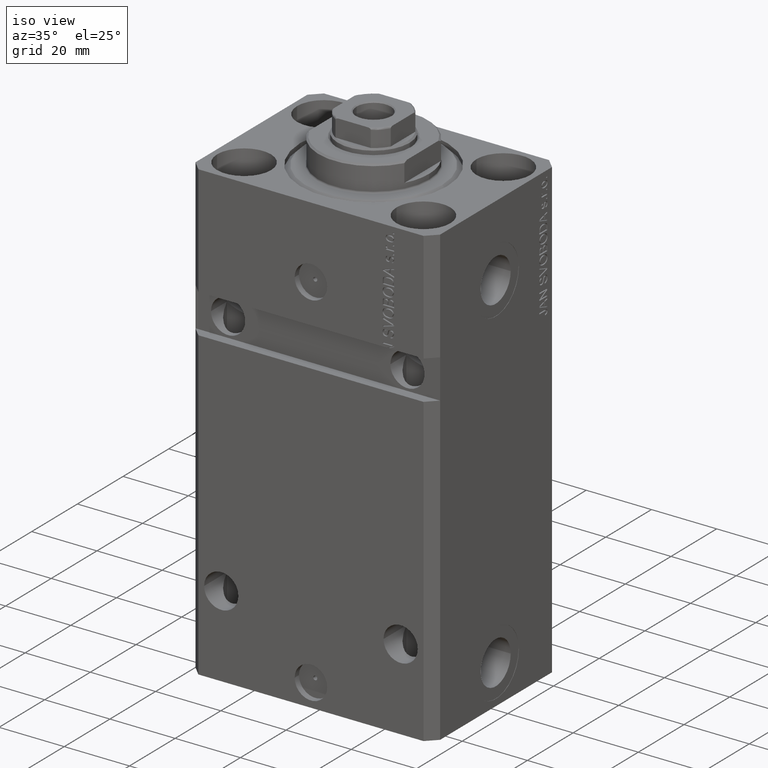
[diagram: clean part render]
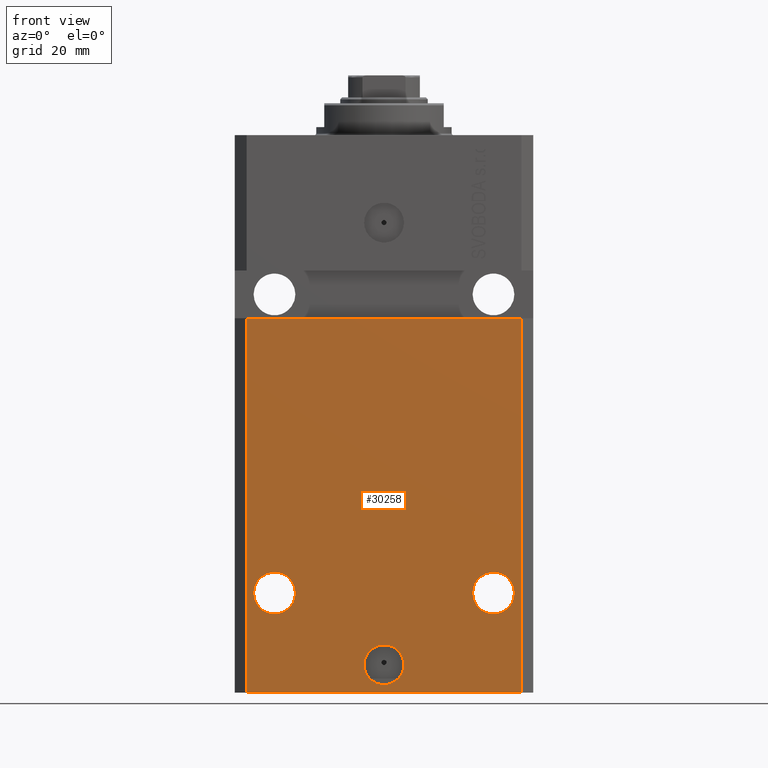
[diagram: tour spotlight — one face highlighted and labeled with its STEP entity id]
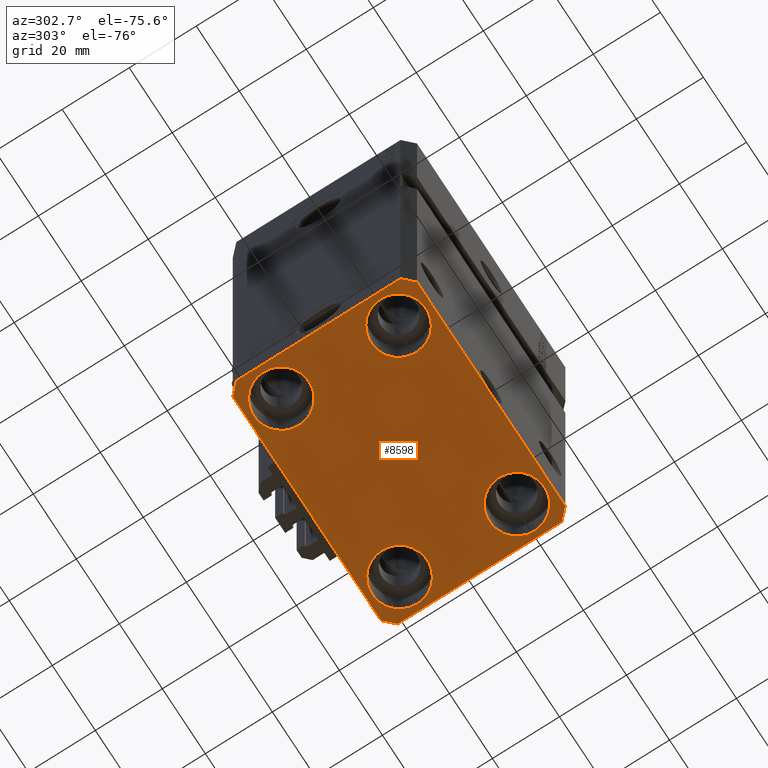
[diagram: tour spotlight — one face highlighted and labeled with its STEP entity id]
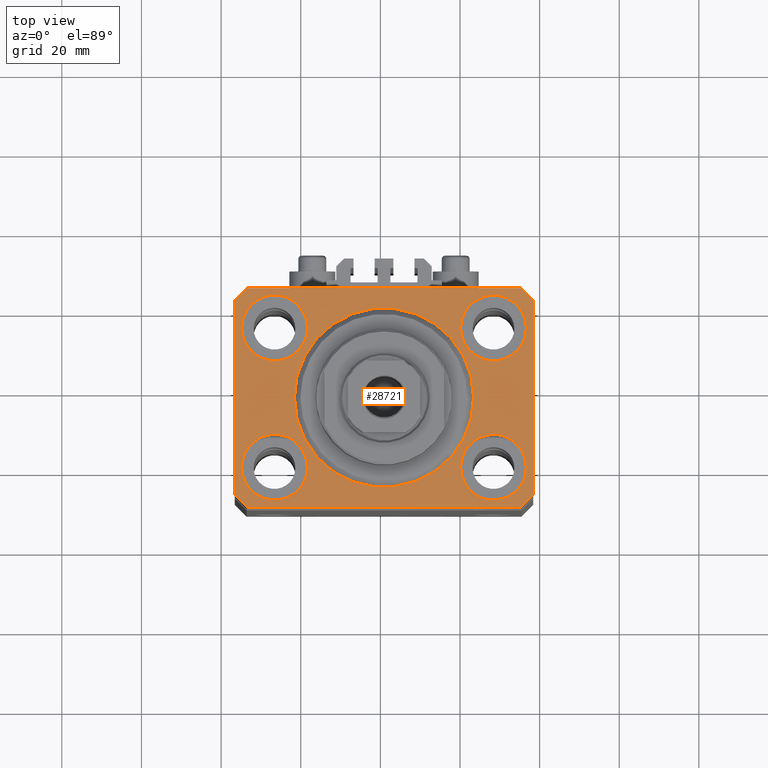
[diagram: tour spotlight — one face highlighted and labeled with its STEP entity id]
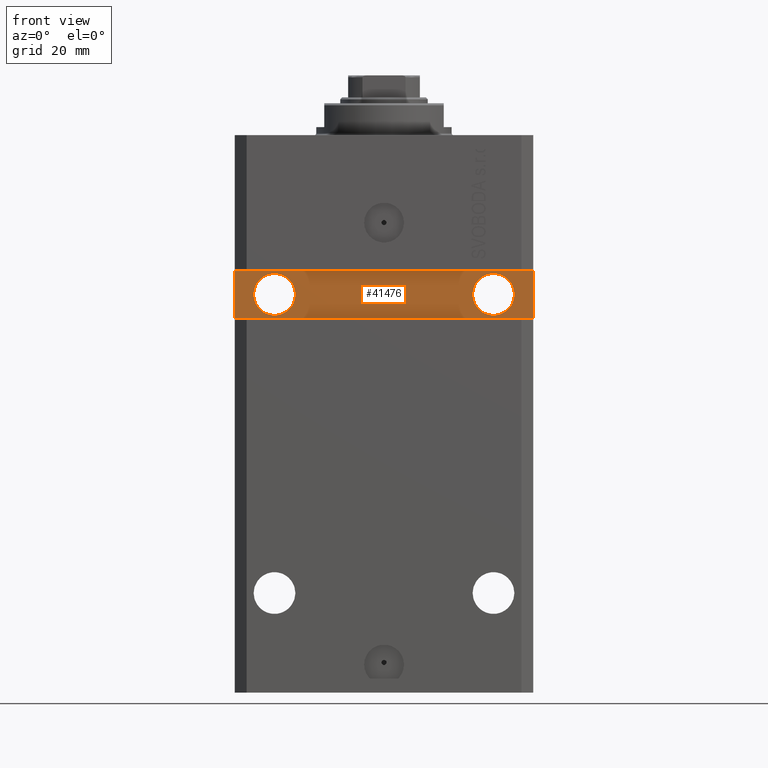
[diagram: tour spotlight — one face highlighted and labeled with its STEP entity id]
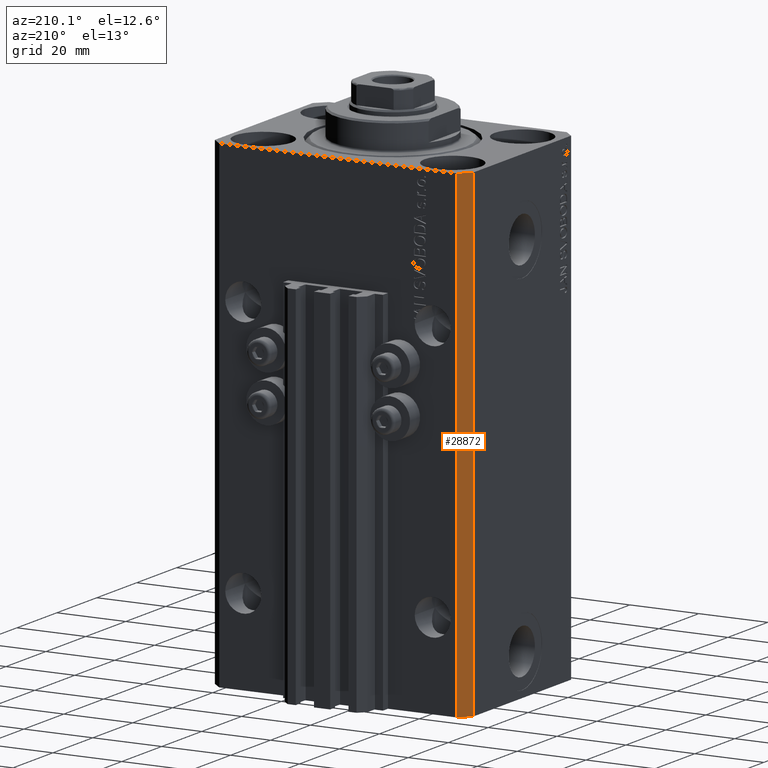
[diagram: tour spotlight — one face highlighted and labeled with its STEP entity id]
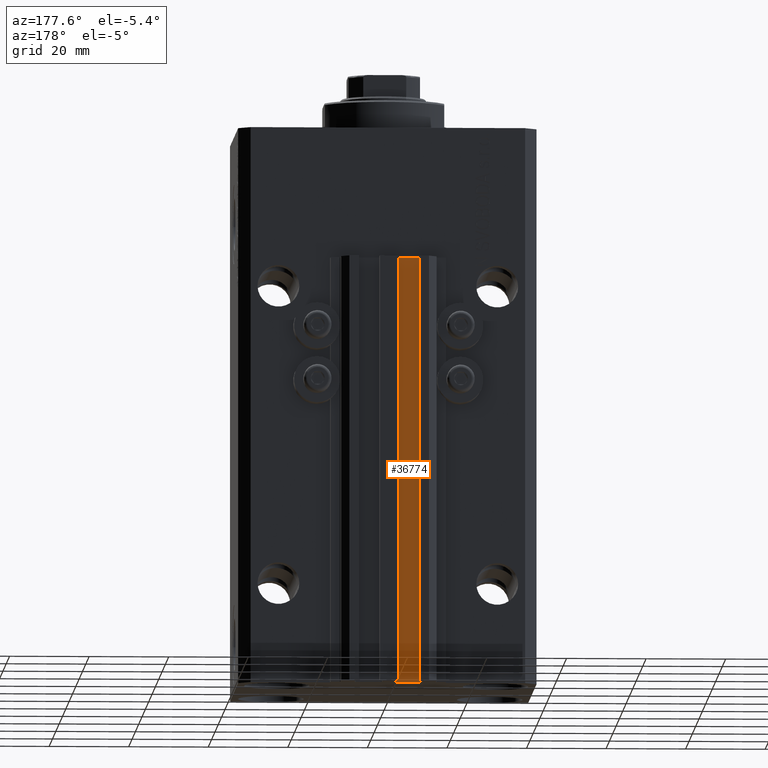
[diagram: tour spotlight — one face highlighted and labeled with its STEP entity id]
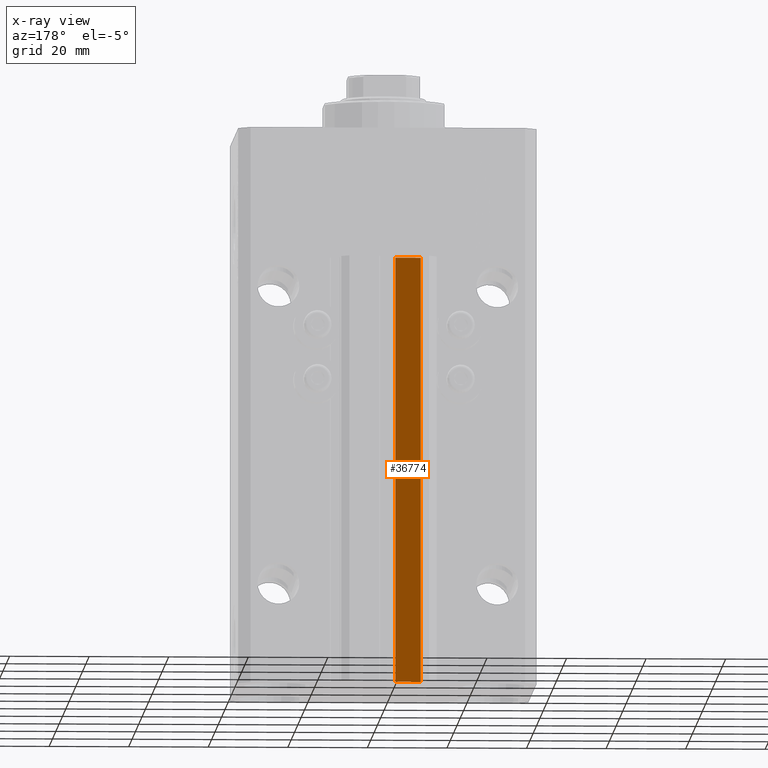
[diagram: x-ray of the same camera — body ghosted, this tour face saturated]
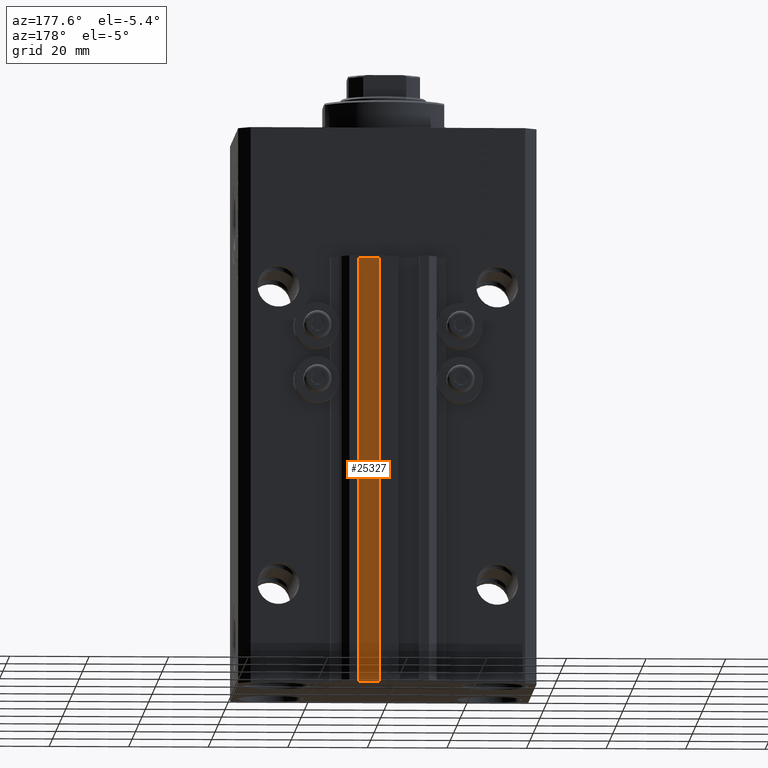
[diagram: tour spotlight — one face highlighted and labeled with its STEP entity id]
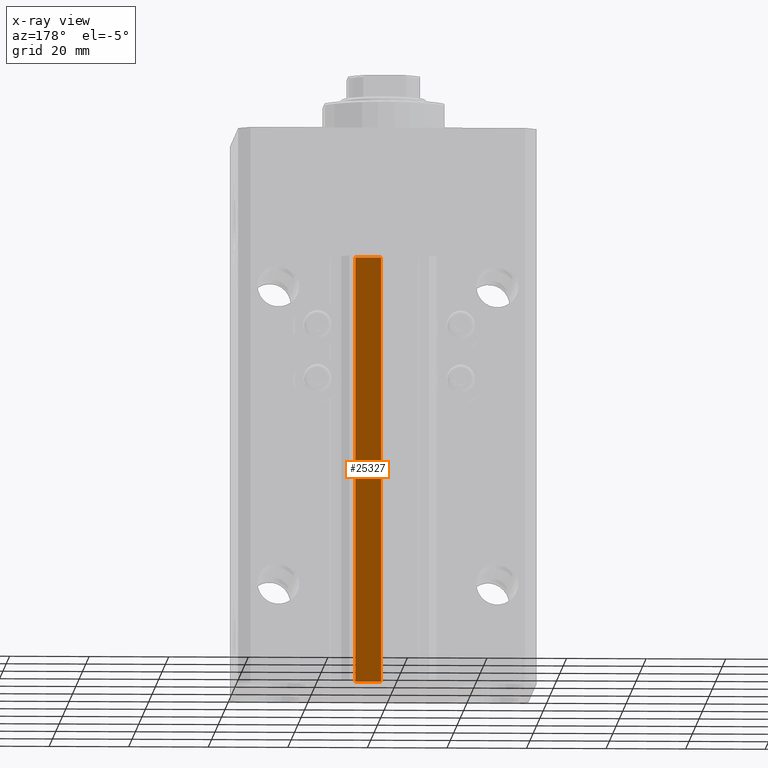
[diagram: x-ray of the same camera — body ghosted, this tour face saturated]
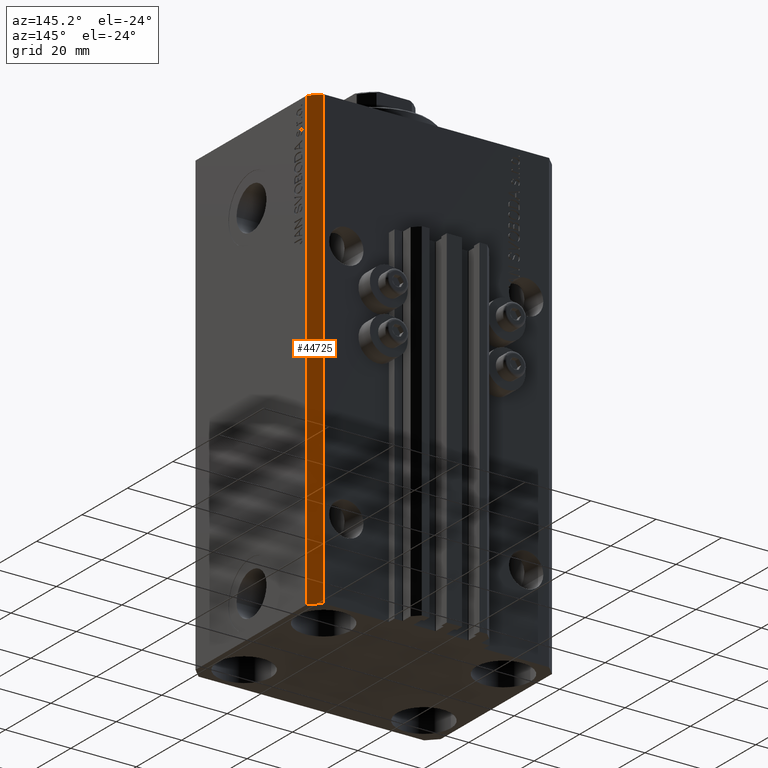
[diagram: tour spotlight — one face highlighted and labeled with its STEP entity id]
A machine part: a face-by-face anatomy tour. The part has 1100 B-rep faces; the first image is the clean iso view, then the 8 largest visible faces are spotlighted one at a time (largest first), each with its STEP entity span.

Face 1 — front view, entity #30258. In plain terms, the highlighted planar face has unit normal (0, -1, 0).
Definition (entity closure, byte-faithful):
#1977 = EDGE_LOOP ( 'NONE', ( #9939, #15415 ) ) ;
#2534 = CARTESIAN_POINT ( 'NONE',  ( -34.49999999999998579, -27.49999999999999645, -140.0000000000000000 ) ) ;
#2749 = VECTOR ( 'NONE', #28251, 1000.000000000000000 ) ;
#2879 = CARTESIAN_POINT ( 'NONE',  ( 22.25000000000002132, -27.49999999999999289, -114.9999999999999858 ) ) ;
#3288 = CARTESIAN_POINT ( 'NONE',  ( -27.50000000000001776, -27.50000000000000000, -114.9999999999999858 ) ) ;
#3728 = EDGE_CURVE ( 'NONE', #19976, #15999, #42656, .T. ) ;
#3859 = EDGE_LOOP ( 'NONE', ( #6249, #37751 ) ) ;
#4379 = VERTEX_POINT ( 'NONE', #32494 ) ;
#4487 = CIRCLE ( 'NONE', #24618, 5.249999999999997335 ) ;
#4536 = DIRECTION ( 'NONE',  ( 0.000000000000000000, -0.000000000000000000, -1.000000000000000000 ) ) ;
#4546 = AXIS2_PLACEMENT_3D ( 'NONE', #3288, #39633, #25575 ) ;
#5304 = CIRCLE ( 'NONE', #45526, 5.249999999999997335 ) ;
#5549 = EDGE_CURVE ( 'NONE', #36845, #9727, #39465, .T. ) ;
#6249 = ORIENTED_EDGE ( 'NONE', *, *, #26394, .F. ) ;
#6789 = CARTESIAN_POINT ( 'NONE',  ( -34.49999999999998579, -27.49999999999999645, -140.0000000000000000 ) ) ;
#7390 = EDGE_CURVE ( 'NONE', #15221, #27520, #18252, .T. ) ;
#7449 = FACE_BOUND ( 'NONE', #3859, .T. ) ;
#8467 = CARTESIAN_POINT ( 'NONE',  ( 0.000000000000000000, -27.49999999999999645, -133.0000000000000000 ) ) ;
#9727 = VERTEX_POINT ( 'NONE', #42075 ) ;
#9769 = EDGE_CURVE ( 'NONE', #15999, #9727, #43510, .T. ) ;
#9939 = ORIENTED_EDGE ( 'NONE', *, *, #19971, .F. ) ;
#10847 = AXIS2_PLACEMENT_3D ( 'NONE', #32717, #28840, #25200 ) ;
#12093 = DIRECTION ( 'NONE',  ( 1.000000000000000000, 0.000000000000000000, 0.000000000000000000 ) ) ;
#12491 = ORIENTED_EDGE ( 'NONE', *, *, #7390, .F. ) ;
#12802 = CARTESIAN_POINT ( 'NONE',  ( -5.000000000000006217, -27.49999999999999645, -133.0000000000000000 ) ) ;
#13310 = ORIENTED_EDGE ( 'NONE', *, *, #9769, .T. ) ;
#13447 = DIRECTION ( 'NONE',  ( 1.176083712526788232E-16, -1.000000000000000000, 0.000000000000000000 ) ) ;
#14148 = ORIENTED_EDGE ( 'NONE', *, *, #5549, .F. ) ;
#14586 = CARTESIAN_POINT ( 'NONE',  ( 5.000000000000006217, -27.49999999999999645, -133.0000000000000000 ) ) ;
#14722 = DIRECTION ( 'NONE',  ( 0.000000000000000000, -1.000000000000000000, 0.000000000000000000 ) ) ;
#14950 = PLANE ( 'NONE',  #39321 ) ;
#15081 = EDGE_CURVE ( 'NONE', #27520, #15221, #4487, .T. ) ;
#15221 = VERTEX_POINT ( 'NONE', #2879 ) ;
#15415 = ORIENTED_EDGE ( 'NONE', *, *, #25041, .F. ) ;
#15999 = VERTEX_POINT ( 'NONE', #32694 ) ;
#16609 = CARTESIAN_POINT ( 'NONE',  ( -27.50000000000001776, -27.50000000000000000, -114.9999999999999858 ) ) ;
#17030 = CIRCLE ( 'NONE', #10847, 5.000000000000006217 ) ;
#17299 = DIRECTION ( 'NONE',  ( 0.000000000000000000, 0.000000000000000000, 1.000000000000000000 ) ) ;
#17894 = DIRECTION ( 'NONE',  ( 1.000000000000000000, 9.251858538542972814E-17, 9.251858538542972814E-17 ) ) ;
#17920 = CARTESIAN_POINT ( 'NONE',  ( -34.49999999999998579, -27.50000000000000000, -46.00000000000000000 ) ) ;
#18252 = CIRCLE ( 'NONE', #45328, 5.249999999999997335 ) ;
#19321 = FACE_OUTER_BOUND ( 'NONE', #19670, .T. ) ;
#19560 = FACE_BOUND ( 'NONE', #1977, .T. ) ;
#19670 = EDGE_LOOP ( 'NONE', ( #14148, #24633, #29168, #13310 ) ) ;
#19910 = CARTESIAN_POINT ( 'NONE',  ( -34.49999999999998579, -27.49999999999999645, -140.0000000000000000 ) ) ;
#19971 = EDGE_CURVE ( 'NONE', #29254, #40070, #17030, .T. ) ;
#19976 = VERTEX_POINT ( 'NONE', #6789 ) ;
#20086 = CARTESIAN_POINT ( 'NONE',  ( 27.50000000000001776, -27.49999999999999289, -114.9999999999999858 ) ) ;
#23560 = VECTOR ( 'NONE', #28120, 1000.000000000000000 ) ;
#24519 = VERTEX_POINT ( 'NONE', #41107 ) ;
#24618 = AXIS2_PLACEMENT_3D ( 'NONE', #38279, #34896, #45292 ) ;
#24633 = ORIENTED_EDGE ( 'NONE', *, *, #46970, .F. ) ;
#25041 = EDGE_CURVE ( 'NONE', #40070, #29254, #36530, .T. ) ;
#25200 = DIRECTION ( 'NONE',  ( 1.000000000000000000, 0.000000000000000000, 0.000000000000000000 ) ) ;
#25480 = VECTOR ( 'NONE', #17299, 1000.000000000000000 ) ;
#25575 = DIRECTION ( 'NONE',  ( -1.000000000000000000, 0.000000000000000000, 0.000000000000000000 ) ) ;
#25697 = AXIS2_PLACEMENT_3D ( 'NONE', #8467, #45271, #12093 ) ;
#26060 = ORIENTED_EDGE ( 'NONE', *, *, #15081, .F. ) ;
#26394 = EDGE_CURVE ( 'NONE', #4379, #24519, #31627, .T. ) ;
#27520 = VERTEX_POINT ( 'NONE', #36791 ) ;
#27587 = DIRECTION ( 'NONE',  ( 1.176083712526788232E-16, -1.000000000000000000, 0.000000000000000000 ) ) ;
#28120 = DIRECTION ( 'NONE',  ( 1.000000000000000000, 0.000000000000000000, 0.000000000000000000 ) ) ;
#28251 = DIRECTION ( 'NONE',  ( 0.000000000000000000, 0.000000000000000000, 1.000000000000000000 ) ) ;
#28840 = DIRECTION ( 'NONE',  ( 1.176083712526788232E-16, -1.000000000000000000, 0.000000000000000000 ) ) ;
#29168 = ORIENTED_EDGE ( 'NONE', *, *, #3728, .T. ) ;
#29254 = VERTEX_POINT ( 'NONE', #14586 ) ;
#29818 = EDGE_CURVE ( 'NONE', #24519, #4379, #5304, .T. ) ;
#30227 = FACE_BOUND ( 'NONE', #37506, .T. ) ;
#30258 = ADVANCED_FACE ( 'NONE', ( #19560, #30227, #7449, #19321 ), #14950, .T. ) ;
#31152 = LINE ( 'NONE', #2534, #25480 ) ;
#31627 = CIRCLE ( 'NONE', #4546, 5.249999999999997335 ) ;
#32494 = CARTESIAN_POINT ( 'NONE',  ( -22.25000000000002132, -27.50000000000000000, -114.9999999999999858 ) ) ;
#32694 = CARTESIAN_POINT ( 'NONE',  ( 34.49999999999999289, -27.49999999999999645, -140.0000000000000000 ) ) ;
#32717 = CARTESIAN_POINT ( 'NONE',  ( 0.000000000000000000, -27.49999999999999645, -133.0000000000000000 ) ) ;
#33851 = CARTESIAN_POINT ( 'NONE',  ( -34.49999999999998579, -27.49999999999999645, -140.0000000000000000 ) ) ;
#34875 = DIRECTION ( 'NONE',  ( 1.000000000000000000, 0.000000000000000000, 0.000000000000000000 ) ) ;
#34896 = DIRECTION ( 'NONE',  ( 1.176083712526788232E-16, -1.000000000000000000, 0.000000000000000000 ) ) ;
#36530 = CIRCLE ( 'NONE', #25697, 5.000000000000006217 ) ;
#36791 = CARTESIAN_POINT ( 'NONE',  ( 32.75000000000001421, -27.49999999999999289, -114.9999999999999858 ) ) ;
#36845 = VERTEX_POINT ( 'NONE', #17920 ) ;
#37506 = EDGE_LOOP ( 'NONE', ( #26060, #12491 ) ) ;
#37751 = ORIENTED_EDGE ( 'NONE', *, *, #29818, .F. ) ;
#38279 = CARTESIAN_POINT ( 'NONE',  ( 27.50000000000001776, -27.49999999999999289, -114.9999999999999858 ) ) ;
#39321 = AXIS2_PLACEMENT_3D ( 'NONE', #33851, #14722, #4536 ) ;
#39465 = LINE ( 'NONE', #39699, #47589 ) ;
#39633 = DIRECTION ( 'NONE',  ( 1.176083712526788232E-16, -1.000000000000000000, 0.000000000000000000 ) ) ;
#39699 = CARTESIAN_POINT ( 'NONE',  ( -37.50000000000000000, -27.50000000000000000, -46.00000000000000000 ) ) ;
#40070 = VERTEX_POINT ( 'NONE', #12802 ) ;
#41107 = CARTESIAN_POINT ( 'NONE',  ( -32.75000000000001421, -27.50000000000000000, -114.9999999999999858 ) ) ;
#42075 = CARTESIAN_POINT ( 'NONE',  ( 34.49999999999999289, -27.49999999999999289, -45.99999999999999289 ) ) ;
#42656 = LINE ( 'NONE', #19910, #23560 ) ;
#42763 = DIRECTION ( 'NONE',  ( -1.000000000000000000, 0.000000000000000000, 0.000000000000000000 ) ) ;
#43510 = LINE ( 'NONE', #46646, #2749 ) ;
#45271 = DIRECTION ( 'NONE',  ( 1.176083712526788232E-16, -1.000000000000000000, 0.000000000000000000 ) ) ;
#45292 = DIRECTION ( 'NONE',  ( 1.000000000000000000, 0.000000000000000000, 0.000000000000000000 ) ) ;
#45328 = AXIS2_PLACEMENT_3D ( 'NONE', #20086, #27587, #34875 ) ;
#45526 = AXIS2_PLACEMENT_3D ( 'NONE', #16609, #13447, #42763 ) ;
#46646 = CARTESIAN_POINT ( 'NONE',  ( 34.49999999999999289, -27.49999999999999645, -140.0000000000000000 ) ) ;
#46970 = EDGE_CURVE ( 'NONE', #19976, #36845, #31152, .T. ) ;
#47589 = VECTOR ( 'NONE', #17894, 1000.000000000000000 ) ;

Face 2 — auxiliary view, entity #8598. In plain terms, the highlighted planar face has unit normal (0, 0, 1).
Definition (entity closure, byte-faithful):
#193 = DIRECTION ( 'NONE',  ( -0.000000000000000000, -0.000000000000000000, 1.000000000000000000 ) ) ;
#491 = VERTEX_POINT ( 'NONE', #29422 ) ;
#2094 = CARTESIAN_POINT ( 'NONE',  ( 37.50000000000051870, 24.49999999999995381, -140.0000000000000000 ) ) ;
#2254 = DIRECTION ( 'NONE',  ( -1.000000000000000000, 0.000000000000000000, 0.000000000000000000 ) ) ;
#2861 = FACE_BOUND ( 'NONE', #27019, .T. ) ;
#3277 = CARTESIAN_POINT ( 'NONE',  ( -37.49999999999999289, -24.50000000000000000, -140.0000000000000000 ) ) ;
#3506 = CARTESIAN_POINT ( 'NONE',  ( -19.25000000000000355, -17.50000000000000000, -140.0000000000000000 ) ) ;
#3728 = EDGE_CURVE ( 'NONE', #19976, #15999, #42656, .T. ) ;
#3948 = VECTOR ( 'NONE', #2254, 1000.000000000000000 ) ;
#4513 = AXIS2_PLACEMENT_3D ( 'NONE', #37018, #36777, #15681 ) ;
#5030 = CARTESIAN_POINT ( 'NONE',  ( -27.50000000000000355, 17.50000000000000000, -140.0000000000000000 ) ) ;
#5178 = LINE ( 'NONE', #9294, #18716 ) ;
#5251 = CIRCLE ( 'NONE', #16075, 8.250000000000000000 ) ;
#5517 = DIRECTION ( 'NONE',  ( 1.000000000000000000, 0.000000000000000000, 0.000000000000000000 ) ) ;
#5977 = EDGE_CURVE ( 'NONE', #20012, #14721, #14671, .T. ) ;
#6014 = DIRECTION ( 'NONE',  ( 1.000000000000000000, 0.000000000000000000, 0.000000000000000000 ) ) ;
#6020 = CARTESIAN_POINT ( 'NONE',  ( 0.000000000000000000, 0.000000000000000000, -140.0000000000000000 ) ) ;
#6789 = CARTESIAN_POINT ( 'NONE',  ( -34.49999999999998579, -27.49999999999999645, -140.0000000000000000 ) ) ;
#6947 = VERTEX_POINT ( 'NONE', #43668 ) ;
#6986 = FACE_BOUND ( 'NONE', #37729, .T. ) ;
#7134 = AXIS2_PLACEMENT_3D ( 'NONE', #11304, #30216, #26094 ) ;
#7490 = EDGE_CURVE ( 'NONE', #12868, #23882, #32201, .T. ) ;
#7586 = CIRCLE ( 'NONE', #4513, 8.249999999999992895 ) ;
#7837 = DIRECTION ( 'NONE',  ( 1.000000000000000000, 0.000000000000000000, 0.000000000000000000 ) ) ;
#7958 = CARTESIAN_POINT ( 'NONE',  ( 19.25000000000000000, 17.50000000000001066, -140.0000000000000000 ) ) ;
#8598 = ADVANCED_FACE ( 'NONE', ( #40172, #2861, #10137, #6986, #13518 ), #24925, .F. ) ;
#9205 = ORIENTED_EDGE ( 'NONE', *, *, #3728, .F. ) ;
#9294 = CARTESIAN_POINT ( 'NONE',  ( 34.49999999999999289, -27.49999999999999645, -140.0000000000000000 ) ) ;
#9802 = VECTOR ( 'NONE', #27361, 1000.000000000000000 ) ;
#9881 = CARTESIAN_POINT ( 'NONE',  ( -27.50000000000000355, -17.50000000000000000, -140.0000000000000000 ) ) ;
#10137 = FACE_BOUND ( 'NONE', #15084, .T. ) ;
#10239 = ORIENTED_EDGE ( 'NONE', *, *, #20742, .F. ) ;
#10298 = LINE ( 'NONE', #32828, #36534 ) ;
#11304 = CARTESIAN_POINT ( 'NONE',  ( -27.50000000000000355, 17.50000000000000000, -140.0000000000000000 ) ) ;
#11446 = DIRECTION ( 'NONE',  ( -0.000000000000000000, -0.000000000000000000, 1.000000000000000000 ) ) ;
#12585 = CARTESIAN_POINT ( 'NONE',  ( -34.49999999999999289, 27.50000000000000000, -140.0000000000000000 ) ) ;
#12868 = VERTEX_POINT ( 'NONE', #3506 ) ;
#13518 = FACE_OUTER_BOUND ( 'NONE', #32821, .T. ) ;
#13562 = EDGE_CURVE ( 'NONE', #31254, #19466, #45763, .T. ) ;
#13693 = DIRECTION ( 'NONE',  ( 0.000000000000000000, -1.000000000000000000, 0.000000000000000000 ) ) ;
#13778 = AXIS2_PLACEMENT_3D ( 'NONE', #25986, #11446, #18005 ) ;
#14555 = DIRECTION ( 'NONE',  ( -0.7071067811865356934, 0.7071067811865594521, 0.000000000000000000 ) ) ;
#14580 = DIRECTION ( 'NONE',  ( -0.000000000000000000, -0.000000000000000000, 1.000000000000000000 ) ) ;
#14614 = VECTOR ( 'NONE', #32835, 1000.000000000000000 ) ;
#14671 = LINE ( 'NONE', #23089, #42963 ) ;
#14721 = VERTEX_POINT ( 'NONE', #2094 ) ;
#14930 = CARTESIAN_POINT ( 'NONE',  ( -37.49999999999999289, 24.50000000000000000, -140.0000000000000000 ) ) ;
#15084 = EDGE_LOOP ( 'NONE', ( #23651, #34669 ) ) ;
#15681 = DIRECTION ( 'NONE',  ( 1.000000000000000000, 0.000000000000000000, 0.000000000000000000 ) ) ;
#15999 = VERTEX_POINT ( 'NONE', #32694 ) ;
#16075 = AXIS2_PLACEMENT_3D ( 'NONE', #47273, #14580, #35906 ) ;
#16909 = VERTEX_POINT ( 'NONE', #7958 ) ;
#17149 = DIRECTION ( 'NONE',  ( -0.000000000000000000, -0.000000000000000000, 1.000000000000000000 ) ) ;
#17639 = DIRECTION ( 'NONE',  ( 0.000000000000000000, 0.000000000000000000, 1.000000000000000000 ) ) ;
#18005 = DIRECTION ( 'NONE',  ( 1.000000000000000000, 0.000000000000000000, 0.000000000000000000 ) ) ;
#18407 = AXIS2_PLACEMENT_3D ( 'NONE', #24066, #42224, #38845 ) ;
#18716 = VECTOR ( 'NONE', #19966, 1000.000000000000114 ) ;
#18904 = ORIENTED_EDGE ( 'NONE', *, *, #34910, .F. ) ;
#19466 = VERTEX_POINT ( 'NONE', #14930 ) ;
#19910 = CARTESIAN_POINT ( 'NONE',  ( -34.49999999999998579, -27.49999999999999645, -140.0000000000000000 ) ) ;
#19966 = DIRECTION ( 'NONE',  ( 0.7071067811865474617, 0.7071067811865474617, 0.000000000000000000 ) ) ;
#19976 = VERTEX_POINT ( 'NONE', #6789 ) ;
#19999 = VERTEX_POINT ( 'NONE', #38017 ) ;
#20012 = VERTEX_POINT ( 'NONE', #22528 ) ;
#20603 = EDGE_CURVE ( 'NONE', #19466, #40261, #10298, .T. ) ;
#20742 = EDGE_CURVE ( 'NONE', #15999, #20012, #5178, .T. ) ;
#21176 = ORIENTED_EDGE ( 'NONE', *, *, #7490, .T. ) ;
#21408 = AXIS2_PLACEMENT_3D ( 'NONE', #5030, #193, #5517 ) ;
#21494 = CIRCLE ( 'NONE', #18407, 8.249999999999992895 ) ;
#21572 = EDGE_CURVE ( 'NONE', #35177, #491, #41194, .T. ) ;
#21668 = EDGE_CURVE ( 'NONE', #40144, #31254, #32051, .T. ) ;
#21704 = LINE ( 'NONE', #3277, #14614 ) ;
#22297 = CIRCLE ( 'NONE', #13778, 8.250000000000000000 ) ;
#22457 = EDGE_LOOP ( 'NONE', ( #27920, #21176 ) ) ;
#22528 = CARTESIAN_POINT ( 'NONE',  ( 37.49999999999999289, -24.50000000000000000, -140.0000000000000000 ) ) ;
#23089 = CARTESIAN_POINT ( 'NONE',  ( 37.49999999999999289, -24.50000000000000000, -140.0000000000000000 ) ) ;
#23560 = VECTOR ( 'NONE', #28120, 1000.000000000000000 ) ;
#23651 = ORIENTED_EDGE ( 'NONE', *, *, #33865, .T. ) ;
#23882 = VERTEX_POINT ( 'NONE', #25040 ) ;
#24066 = CARTESIAN_POINT ( 'NONE',  ( 27.49999999999999645, 17.50000000000001066, -140.0000000000000000 ) ) ;
#24561 = CIRCLE ( 'NONE', #26891, 8.250000000000000000 ) ;
#24564 = ORIENTED_EDGE ( 'NONE', *, *, #5977, .F. ) ;
#24925 = PLANE ( 'NONE',  #25172 ) ;
#25040 = CARTESIAN_POINT ( 'NONE',  ( -35.75000000000000711, -17.50000000000000000, -140.0000000000000000 ) ) ;
#25172 = AXIS2_PLACEMENT_3D ( 'NONE', #6020, #17639, #47180 ) ;
#25986 = CARTESIAN_POINT ( 'NONE',  ( 27.50000000000000355, -17.50000000000000000, -140.0000000000000000 ) ) ;
#26094 = DIRECTION ( 'NONE',  ( 1.000000000000000000, 0.000000000000000000, 0.000000000000000000 ) ) ;
#26726 = ORIENTED_EDGE ( 'NONE', *, *, #21572, .T. ) ;
#26891 = AXIS2_PLACEMENT_3D ( 'NONE', #37147, #41023, #7837 ) ;
#27019 = EDGE_LOOP ( 'NONE', ( #29188, #38207 ) ) ;
#27361 = DIRECTION ( 'NONE',  ( -0.7071067811865471286, -0.7071067811865479058, 0.000000000000000000 ) ) ;
#27920 = ORIENTED_EDGE ( 'NONE', *, *, #32616, .T. ) ;
#28120 = DIRECTION ( 'NONE',  ( 1.000000000000000000, 0.000000000000000000, 0.000000000000000000 ) ) ;
#29182 = EDGE_CURVE ( 'NONE', #19999, #16909, #21494, .T. ) ;
#29188 = ORIENTED_EDGE ( 'NONE', *, *, #33595, .T. ) ;
#29422 = CARTESIAN_POINT ( 'NONE',  ( -19.25000000000000355, 17.50000000000000000, -140.0000000000000000 ) ) ;
#30216 = DIRECTION ( 'NONE',  ( -0.000000000000000000, -0.000000000000000000, 1.000000000000000000 ) ) ;
#30467 = CARTESIAN_POINT ( 'NONE',  ( -34.49999999999999289, 27.50000000000000000, -140.0000000000000000 ) ) ;
#30787 = ORIENTED_EDGE ( 'NONE', *, *, #13562, .F. ) ;
#31254 = VERTEX_POINT ( 'NONE', #30467 ) ;
#31659 = VERTEX_POINT ( 'NONE', #40300 ) ;
#32051 = LINE ( 'NONE', #35685, #3948 ) ;
#32201 = CIRCLE ( 'NONE', #36859, 8.250000000000000000 ) ;
#32616 = EDGE_CURVE ( 'NONE', #23882, #12868, #24561, .T. ) ;
#32694 = CARTESIAN_POINT ( 'NONE',  ( 34.49999999999999289, -27.49999999999999645, -140.0000000000000000 ) ) ;
#32821 = EDGE_LOOP ( 'NONE', ( #45389, #18904, #24564, #10239, #9205, #47438, #35469, #30787 ) ) ;
#32828 = CARTESIAN_POINT ( 'NONE',  ( -37.49999999999999289, 24.50000000000000000, -140.0000000000000000 ) ) ;
#32835 = DIRECTION ( 'NONE',  ( 0.7071067811865483499, -0.7071067811865466846, 0.000000000000000000 ) ) ;
#33595 = EDGE_CURVE ( 'NONE', #31659, #6947, #22297, .T. ) ;
#33865 = EDGE_CURVE ( 'NONE', #16909, #19999, #7586, .T. ) ;
#34669 = ORIENTED_EDGE ( 'NONE', *, *, #29182, .T. ) ;
#34910 = EDGE_CURVE ( 'NONE', #14721, #40144, #36608, .T. ) ;
#35177 = VERTEX_POINT ( 'NONE', #39950 ) ;
#35469 = ORIENTED_EDGE ( 'NONE', *, *, #20603, .F. ) ;
#35685 = CARTESIAN_POINT ( 'NONE',  ( 34.50000000000056843, 27.50000000000000000, -140.0000000000000000 ) ) ;
#35906 = DIRECTION ( 'NONE',  ( 1.000000000000000000, 0.000000000000000000, 0.000000000000000000 ) ) ;
#36534 = VECTOR ( 'NONE', #13693, 1000.000000000000000 ) ;
#36608 = LINE ( 'NONE', #43631, #47620 ) ;
#36777 = DIRECTION ( 'NONE',  ( -0.000000000000000000, -0.000000000000000000, 1.000000000000000000 ) ) ;
#36859 = AXIS2_PLACEMENT_3D ( 'NONE', #9881, #17149, #6014 ) ;
#37018 = CARTESIAN_POINT ( 'NONE',  ( 27.49999999999999645, 17.50000000000001066, -140.0000000000000000 ) ) ;
#37147 = CARTESIAN_POINT ( 'NONE',  ( -27.50000000000000355, -17.50000000000000000, -140.0000000000000000 ) ) ;
#37729 = EDGE_LOOP ( 'NONE', ( #26726, #37825 ) ) ;
#37825 = ORIENTED_EDGE ( 'NONE', *, *, #37965, .T. ) ;
#37859 = DIRECTION ( 'NONE',  ( 1.076236605503979380E-14, 1.000000000000000000, 0.000000000000000000 ) ) ;
#37965 = EDGE_CURVE ( 'NONE', #491, #35177, #42281, .T. ) ;
#38017 = CARTESIAN_POINT ( 'NONE',  ( 35.74999999999999289, 17.50000000000001066, -140.0000000000000000 ) ) ;
#38207 = ORIENTED_EDGE ( 'NONE', *, *, #39717, .T. ) ;
#38845 = DIRECTION ( 'NONE',  ( 1.000000000000000000, 0.000000000000000000, 0.000000000000000000 ) ) ;
#39717 = EDGE_CURVE ( 'NONE', #6947, #31659, #5251, .T. ) ;
#39950 = CARTESIAN_POINT ( 'NONE',  ( -35.75000000000000711, 17.50000000000000000, -140.0000000000000000 ) ) ;
#40144 = VERTEX_POINT ( 'NONE', #43549 ) ;
#40172 = FACE_BOUND ( 'NONE', #22457, .T. ) ;
#40261 = VERTEX_POINT ( 'NONE', #43780 ) ;
#40300 = CARTESIAN_POINT ( 'NONE',  ( 19.25000000000000000, -17.50000000000000000, -140.0000000000000000 ) ) ;
#41023 = DIRECTION ( 'NONE',  ( -0.000000000000000000, -0.000000000000000000, 1.000000000000000000 ) ) ;
#41194 = CIRCLE ( 'NONE', #7134, 8.250000000000000000 ) ;
#42224 = DIRECTION ( 'NONE',  ( -0.000000000000000000, -0.000000000000000000, 1.000000000000000000 ) ) ;
#42281 = CIRCLE ( 'NONE', #21408, 8.250000000000000000 ) ;
#42656 = LINE ( 'NONE', #19910, #23560 ) ;
#42963 = VECTOR ( 'NONE', #37859, 1000.000000000000000 ) ;
#43549 = CARTESIAN_POINT ( 'NONE',  ( 34.50000000000056843, 27.50000000000000000, -140.0000000000000000 ) ) ;
#43631 = CARTESIAN_POINT ( 'NONE',  ( 37.50000000000051870, 24.49999999999995381, -140.0000000000000000 ) ) ;
#43668 = CARTESIAN_POINT ( 'NONE',  ( 35.75000000000000711, -17.50000000000000000, -140.0000000000000000 ) ) ;
#43780 = CARTESIAN_POINT ( 'NONE',  ( -37.49999999999999289, -24.50000000000000000, -140.0000000000000000 ) ) ;
#45389 = ORIENTED_EDGE ( 'NONE', *, *, #21668, .F. ) ;
#45763 = LINE ( 'NONE', #12585, #9802 ) ;
#45831 = EDGE_CURVE ( 'NONE', #40261, #19976, #21704, .T. ) ;
#47180 = DIRECTION ( 'NONE',  ( 1.000000000000000000, 0.000000000000000000, -0.000000000000000000 ) ) ;
#47273 = CARTESIAN_POINT ( 'NONE',  ( 27.50000000000000355, -17.50000000000000000, -140.0000000000000000 ) ) ;
#47438 = ORIENTED_EDGE ( 'NONE', *, *, #45831, .F. ) ;
#47620 = VECTOR ( 'NONE', #14555, 1000.000000000000114 ) ;

Face 3 — top view, entity #28721. In plain terms, the highlighted planar face has unit normal (0, 0, 1).
Definition (entity closure, byte-faithful):
#12 = EDGE_CURVE ( 'NONE', #36129, #34969, #45373, .T. ) ;
#96 = CARTESIAN_POINT ( 'NONE',  ( 27.49999999999999645, 17.50000000000001066, 0.000000000000000000 ) ) ;
#1022 = DIRECTION ( 'NONE',  ( 1.000000000000000000, 0.000000000000000000, 0.000000000000000000 ) ) ;
#1318 = AXIS2_PLACEMENT_3D ( 'NONE', #4903, #27199, #1022 ) ;
#1581 = CARTESIAN_POINT ( 'NONE',  ( -37.49999999999999289, -24.50000000000000000, 0.000000000000000000 ) ) ;
#2174 = ORIENTED_EDGE ( 'NONE', *, *, #12, .T. ) ;
#2181 = DIRECTION ( 'NONE',  ( 0.000000000000000000, 0.000000000000000000, 1.000000000000000000 ) ) ;
#2348 = LINE ( 'NONE', #21482, #21344 ) ;
#2507 = LINE ( 'NONE', #43199, #15217 ) ;
#2660 = DIRECTION ( 'NONE',  ( 1.000000000000000000, 0.000000000000000000, 0.000000000000000000 ) ) ;
#2707 = ORIENTED_EDGE ( 'NONE', *, *, #24299, .F. ) ;
#2830 = EDGE_CURVE ( 'NONE', #27763, #17466, #26630, .T. ) ;
#3069 = CIRCLE ( 'NONE', #36349, 8.249999999999992895 ) ;
#3091 = FACE_OUTER_BOUND ( 'NONE', #10395, .T. ) ;
#3241 = CARTESIAN_POINT ( 'NONE',  ( -19.25000000000000355, 17.50000000000000000, 0.000000000000000000 ) ) ;
#3796 = DIRECTION ( 'NONE',  ( 1.000000000000000000, 0.000000000000000000, -0.000000000000000000 ) ) ;
#3858 = DIRECTION ( 'NONE',  ( 1.000000000000000000, 0.000000000000000000, 0.000000000000000000 ) ) ;
#3927 = DIRECTION ( 'NONE',  ( 0.000000000000000000, 0.000000000000000000, 1.000000000000000000 ) ) ;
#4903 = CARTESIAN_POINT ( 'NONE',  ( 27.49999999999999645, 17.50000000000001066, 0.000000000000000000 ) ) ;
#5650 = CARTESIAN_POINT ( 'NONE',  ( 34.50000000000056843, 27.50000000000000000, 0.000000000000000000 ) ) ;
#5736 = DIRECTION ( 'NONE',  ( 1.076236605503979380E-14, 1.000000000000000000, 0.000000000000000000 ) ) ;
#5985 = DIRECTION ( 'NONE',  ( -0.7071067811865356934, 0.7071067811865594521, 0.000000000000000000 ) ) ;
#6291 = DIRECTION ( 'NONE',  ( 1.000000000000000000, 0.000000000000000000, 0.000000000000000000 ) ) ;
#6491 = CARTESIAN_POINT ( 'NONE',  ( 0.000000000000000000, 0.000000000000000000, 0.000000000000000000 ) ) ;
#6719 = FACE_BOUND ( 'NONE', #31172, .T. ) ;
#6787 = EDGE_CURVE ( 'NONE', #30478, #38410, #2348, .T. ) ;
#6943 = ORIENTED_EDGE ( 'NONE', *, *, #31830, .F. ) ;
#6965 = FACE_BOUND ( 'NONE', #11709, .T. ) ;
#7569 = AXIS2_PLACEMENT_3D ( 'NONE', #42847, #13071, #13532 ) ;
#8006 = CARTESIAN_POINT ( 'NONE',  ( -37.49999999999999289, 24.50000000000000000, 0.000000000000000000 ) ) ;
#8438 = EDGE_CURVE ( 'NONE', #34969, #16441, #8939, .T. ) ;
#8494 = DIRECTION ( 'NONE',  ( 1.000000000000000000, 0.000000000000000000, 0.000000000000000000 ) ) ;
#8939 = LINE ( 'NONE', #24199, #36065 ) ;
#9143 = AXIS2_PLACEMENT_3D ( 'NONE', #25608, #40386, #3796 ) ;
#9442 = DIRECTION ( 'NONE',  ( 0.000000000000000000, 0.000000000000000000, 1.000000000000000000 ) ) ;
#9498 = CARTESIAN_POINT ( 'NONE',  ( 19.25000000000000000, -17.50000000000000000, 0.000000000000000000 ) ) ;
#9799 = EDGE_CURVE ( 'NONE', #28959, #36129, #19723, .T. ) ;
#10370 = AXIS2_PLACEMENT_3D ( 'NONE', #14591, #3927, #41462 ) ;
#10395 = EDGE_LOOP ( 'NONE', ( #31504, #2174, #36437, #13403, #34900, #33570, #21811, #12850 ) ) ;
#11443 = DIRECTION ( 'NONE',  ( 1.000000000000000000, 0.000000000000000000, 0.000000000000000000 ) ) ;
#11709 = EDGE_LOOP ( 'NONE', ( #2707, #17477 ) ) ;
#11920 = EDGE_CURVE ( 'NONE', #17360, #16755, #35336, .T. ) ;
#12059 = AXIS2_PLACEMENT_3D ( 'NONE', #12119, #41675, #8494 ) ;
#12097 = DIRECTION ( 'NONE',  ( 0.000000000000000000, -1.000000000000000000, 0.000000000000000000 ) ) ;
#12119 = CARTESIAN_POINT ( 'NONE',  ( -27.50000000000000355, -17.50000000000000000, 0.000000000000000000 ) ) ;
#12850 = ORIENTED_EDGE ( 'NONE', *, *, #16245, .T. ) ;
#13071 = DIRECTION ( 'NONE',  ( 0.000000000000000000, 0.000000000000000000, 1.000000000000000000 ) ) ;
#13403 = ORIENTED_EDGE ( 'NONE', *, *, #25873, .T. ) ;
#13506 = DIRECTION ( 'NONE',  ( 0.000000000000000000, 0.000000000000000000, 1.000000000000000000 ) ) ;
#13532 = DIRECTION ( 'NONE',  ( 1.000000000000000000, 0.000000000000000000, 0.000000000000000000 ) ) ;
#13891 = DIRECTION ( 'NONE',  ( 0.7071067811865474617, 0.7071067811865474617, 0.000000000000000000 ) ) ;
#14065 = EDGE_CURVE ( 'NONE', #39845, #18568, #42951, .T. ) ;
#14591 = CARTESIAN_POINT ( 'NONE',  ( 0.000000000000000000, 0.000000000000000000, 0.000000000000000000 ) ) ;
#14686 = CARTESIAN_POINT ( 'NONE',  ( -22.50000000000000355, 2.755455298081545172E-15, 0.000000000000000000 ) ) ;
#15217 = VECTOR ( 'NONE', #13891, 1000.000000000000114 ) ;
#15257 = EDGE_CURVE ( 'NONE', #16755, #17360, #21517, .T. ) ;
#15818 = CARTESIAN_POINT ( 'NONE',  ( -34.49999999999999289, 27.50000000000000000, 0.000000000000000000 ) ) ;
#16050 = CARTESIAN_POINT ( 'NONE',  ( 35.74999999999999289, 17.50000000000001066, 0.000000000000000000 ) ) ;
#16245 = EDGE_CURVE ( 'NONE', #38410, #28959, #31435, .T. ) ;
#16441 = VERTEX_POINT ( 'NONE', #1581 ) ;
#16539 = CARTESIAN_POINT ( 'NONE',  ( -35.75000000000000711, 17.50000000000000000, 0.000000000000000000 ) ) ;
#16755 = VERTEX_POINT ( 'NONE', #9498 ) ;
#17360 = VERTEX_POINT ( 'NONE', #35494 ) ;
#17466 = VERTEX_POINT ( 'NONE', #43234 ) ;
#17477 = ORIENTED_EDGE ( 'NONE', *, *, #2830, .F. ) ;
#17516 = AXIS2_PLACEMENT_3D ( 'NONE', #24709, #9442, #6291 ) ;
#17616 = EDGE_CURVE ( 'NONE', #34542, #36493, #46343, .T. ) ;
#18148 = ORIENTED_EDGE ( 'NONE', *, *, #43384, .F. ) ;
#18568 = VERTEX_POINT ( 'NONE', #34971 ) ;
#18720 = CARTESIAN_POINT ( 'NONE',  ( -34.49999999999998579, -27.49999999999999645, 0.000000000000000000 ) ) ;
#18869 = CARTESIAN_POINT ( 'NONE',  ( -27.50000000000000355, -17.50000000000000000, 0.000000000000000000 ) ) ;
#19163 = EDGE_LOOP ( 'NONE', ( #41201, #27207 ) ) ;
#19297 = CIRCLE ( 'NONE', #35543, 8.250000000000000000 ) ;
#19723 = LINE ( 'NONE', #5650, #26762 ) ;
#20451 = EDGE_LOOP ( 'NONE', ( #21084, #36639 ) ) ;
#20667 = DIRECTION ( 'NONE',  ( 0.7071067811865483499, -0.7071067811865466846, 0.000000000000000000 ) ) ;
#20693 = VECTOR ( 'NONE', #11443, 1000.000000000000000 ) ;
#21084 = ORIENTED_EDGE ( 'NONE', *, *, #17616, .F. ) ;
#21344 = VECTOR ( 'NONE', #5736, 1000.000000000000000 ) ;
#21482 = CARTESIAN_POINT ( 'NONE',  ( 37.49999999999999289, -24.50000000000000000, 0.000000000000000000 ) ) ;
#21504 = FACE_BOUND ( 'NONE', #19163, .T. ) ;
#21517 = CIRCLE ( 'NONE', #7569, 8.250000000000000000 ) ;
#21568 = VERTEX_POINT ( 'NONE', #44739 ) ;
#21811 = ORIENTED_EDGE ( 'NONE', *, *, #6787, .T. ) ;
#21848 = VERTEX_POINT ( 'NONE', #43903 ) ;
#22223 = CIRCLE ( 'NONE', #1318, 8.249999999999992895 ) ;
#22281 = DIRECTION ( 'NONE',  ( 0.000000000000000000, 0.000000000000000000, 1.000000000000000000 ) ) ;
#22307 = VECTOR ( 'NONE', #5985, 1000.000000000000114 ) ;
#23110 = DIRECTION ( 'NONE',  ( -0.7071067811865471286, -0.7071067811865479058, 0.000000000000000000 ) ) ;
#23185 = AXIS2_PLACEMENT_3D ( 'NONE', #42693, #31100, #24291 ) ;
#23186 = CIRCLE ( 'NONE', #30925, 8.250000000000000000 ) ;
#24199 = CARTESIAN_POINT ( 'NONE',  ( -37.49999999999999289, 24.50000000000000000, 0.000000000000000000 ) ) ;
#24291 = DIRECTION ( 'NONE',  ( 1.000000000000000000, 0.000000000000000000, 0.000000000000000000 ) ) ;
#24299 = EDGE_CURVE ( 'NONE', #17466, #27763, #25670, .T. ) ;
#24320 = ORIENTED_EDGE ( 'NONE', *, *, #47831, .F. ) ;
#24545 = CARTESIAN_POINT ( 'NONE',  ( -37.49999999999999289, -24.50000000000000000, 0.000000000000000000 ) ) ;
#24709 = CARTESIAN_POINT ( 'NONE',  ( 27.50000000000000355, -17.50000000000000000, 0.000000000000000000 ) ) ;
#24801 = LINE ( 'NONE', #24545, #41227 ) ;
#25073 = DIRECTION ( 'NONE',  ( 1.000000000000000000, 0.000000000000000000, 0.000000000000000000 ) ) ;
#25557 = DIRECTION ( 'NONE',  ( 0.000000000000000000, 0.000000000000000000, 1.000000000000000000 ) ) ;
#25608 = CARTESIAN_POINT ( 'NONE',  ( 0.000000000000000000, 0.000000000000000000, 0.000000000000000000 ) ) ;
#25670 = CIRCLE ( 'NONE', #31856, 22.50000000000000355 ) ;
#25873 = EDGE_CURVE ( 'NONE', #16441, #39845, #24801, .T. ) ;
#26630 = CIRCLE ( 'NONE', #10370, 22.50000000000000355 ) ;
#26762 = VECTOR ( 'NONE', #45636, 1000.000000000000000 ) ;
#27199 = DIRECTION ( 'NONE',  ( 0.000000000000000000, 0.000000000000000000, 1.000000000000000000 ) ) ;
#27207 = ORIENTED_EDGE ( 'NONE', *, *, #15257, .F. ) ;
#27224 = CARTESIAN_POINT ( 'NONE',  ( -27.50000000000000355, 17.50000000000000000, 0.000000000000000000 ) ) ;
#27670 = VERTEX_POINT ( 'NONE', #43042 ) ;
#27763 = VERTEX_POINT ( 'NONE', #14686 ) ;
#27848 = EDGE_LOOP ( 'NONE', ( #38847, #18148 ) ) ;
#28721 = ADVANCED_FACE ( 'NONE', ( #36738, #21504, #6719, #36280, #6965, #3091 ), #47392, .T. ) ;
#28930 = CARTESIAN_POINT ( 'NONE',  ( 37.50000000000051870, 24.49999999999995381, 0.000000000000000000 ) ) ;
#28959 = VERTEX_POINT ( 'NONE', #47335 ) ;
#30189 = CARTESIAN_POINT ( 'NONE',  ( -34.49999999999999289, 27.50000000000000000, 0.000000000000000000 ) ) ;
#30478 = VERTEX_POINT ( 'NONE', #43265 ) ;
#30806 = EDGE_CURVE ( 'NONE', #18568, #30478, #2507, .T. ) ;
#30925 = AXIS2_PLACEMENT_3D ( 'NONE', #27224, #2181, #2660 ) ;
#31100 = DIRECTION ( 'NONE',  ( 0.000000000000000000, 0.000000000000000000, 1.000000000000000000 ) ) ;
#31172 = EDGE_LOOP ( 'NONE', ( #6943, #24320 ) ) ;
#31435 = LINE ( 'NONE', #46185, #22307 ) ;
#31504 = ORIENTED_EDGE ( 'NONE', *, *, #9799, .T. ) ;
#31701 = DIRECTION ( 'NONE',  ( 1.000000000000000000, 0.000000000000000000, 0.000000000000000000 ) ) ;
#31830 = EDGE_CURVE ( 'NONE', #32633, #27670, #22223, .T. ) ;
#31856 = AXIS2_PLACEMENT_3D ( 'NONE', #6491, #13506, #31701 ) ;
#32633 = VERTEX_POINT ( 'NONE', #16050 ) ;
#33518 = VECTOR ( 'NONE', #23110, 1000.000000000000000 ) ;
#33570 = ORIENTED_EDGE ( 'NONE', *, *, #30806, .T. ) ;
#34542 = VERTEX_POINT ( 'NONE', #3241 ) ;
#34900 = ORIENTED_EDGE ( 'NONE', *, *, #14065, .T. ) ;
#34969 = VERTEX_POINT ( 'NONE', #8006 ) ;
#34971 = CARTESIAN_POINT ( 'NONE',  ( 34.49999999999999289, -27.49999999999999645, 0.000000000000000000 ) ) ;
#35067 = EDGE_CURVE ( 'NONE', #21848, #21568, #43771, .T. ) ;
#35336 = CIRCLE ( 'NONE', #17516, 8.250000000000000000 ) ;
#35494 = CARTESIAN_POINT ( 'NONE',  ( 35.75000000000000711, -17.50000000000000000, 0.000000000000000000 ) ) ;
#35543 = AXIS2_PLACEMENT_3D ( 'NONE', #18869, #22281, #3858 ) ;
#36065 = VECTOR ( 'NONE', #12097, 1000.000000000000000 ) ;
#36129 = VERTEX_POINT ( 'NONE', #30189 ) ;
#36280 = FACE_BOUND ( 'NONE', #20451, .T. ) ;
#36349 = AXIS2_PLACEMENT_3D ( 'NONE', #96, #25557, #25073 ) ;
#36437 = ORIENTED_EDGE ( 'NONE', *, *, #8438, .T. ) ;
#36493 = VERTEX_POINT ( 'NONE', #16539 ) ;
#36639 = ORIENTED_EDGE ( 'NONE', *, *, #43321, .F. ) ;
#36738 = FACE_BOUND ( 'NONE', #27848, .T. ) ;
#38410 = VERTEX_POINT ( 'NONE', #28930 ) ;
#38847 = ORIENTED_EDGE ( 'NONE', *, *, #35067, .F. ) ;
#39845 = VERTEX_POINT ( 'NONE', #42641 ) ;
#40386 = DIRECTION ( 'NONE',  ( 0.000000000000000000, 0.000000000000000000, 1.000000000000000000 ) ) ;
#41201 = ORIENTED_EDGE ( 'NONE', *, *, #11920, .F. ) ;
#41227 = VECTOR ( 'NONE', #20667, 1000.000000000000000 ) ;
#41462 = DIRECTION ( 'NONE',  ( 1.000000000000000000, 0.000000000000000000, 0.000000000000000000 ) ) ;
#41675 = DIRECTION ( 'NONE',  ( 0.000000000000000000, 0.000000000000000000, 1.000000000000000000 ) ) ;
#42641 = CARTESIAN_POINT ( 'NONE',  ( -34.49999999999998579, -27.49999999999999645, 0.000000000000000000 ) ) ;
#42693 = CARTESIAN_POINT ( 'NONE',  ( -27.50000000000000355, 17.50000000000000000, 0.000000000000000000 ) ) ;
#42847 = CARTESIAN_POINT ( 'NONE',  ( 27.50000000000000355, -17.50000000000000000, 0.000000000000000000 ) ) ;
#42951 = LINE ( 'NONE', #18720, #20693 ) ;
#43042 = CARTESIAN_POINT ( 'NONE',  ( 19.25000000000000000, 17.50000000000001066, 0.000000000000000000 ) ) ;
#43199 = CARTESIAN_POINT ( 'NONE',  ( 34.49999999999999289, -27.49999999999999645, 0.000000000000000000 ) ) ;
#43234 = CARTESIAN_POINT ( 'NONE',  ( 22.50000000000000355, 0.000000000000000000, 0.000000000000000000 ) ) ;
#43265 = CARTESIAN_POINT ( 'NONE',  ( 37.49999999999999289, -24.50000000000000000, 0.000000000000000000 ) ) ;
#43321 = EDGE_CURVE ( 'NONE', #36493, #34542, #23186, .T. ) ;
#43384 = EDGE_CURVE ( 'NONE', #21568, #21848, #19297, .T. ) ;
#43771 = CIRCLE ( 'NONE', #12059, 8.250000000000000000 ) ;
#43903 = CARTESIAN_POINT ( 'NONE',  ( -19.25000000000000355, -17.50000000000000000, 0.000000000000000000 ) ) ;
#44739 = CARTESIAN_POINT ( 'NONE',  ( -35.75000000000000711, -17.50000000000000000, 0.000000000000000000 ) ) ;
#45373 = LINE ( 'NONE', #15818, #33518 ) ;
#45636 = DIRECTION ( 'NONE',  ( -1.000000000000000000, 0.000000000000000000, 0.000000000000000000 ) ) ;
#46185 = CARTESIAN_POINT ( 'NONE',  ( 37.50000000000051870, 24.49999999999995381, 0.000000000000000000 ) ) ;
#46343 = CIRCLE ( 'NONE', #23185, 8.250000000000000000 ) ;
#47335 = CARTESIAN_POINT ( 'NONE',  ( 34.50000000000056843, 27.50000000000000000, 0.000000000000000000 ) ) ;
#47392 = PLANE ( 'NONE',  #9143 ) ;
#47831 = EDGE_CURVE ( 'NONE', #27670, #32633, #3069, .T. ) ;

Face 4 — front view, entity #41476. In plain terms, the highlighted planar face has unit normal (0, -1, 0).
Definition (entity closure, byte-faithful):
#2231 = CIRCLE ( 'NONE', #46311, 5.249999999999994671 ) ;
#2331 = EDGE_LOOP ( 'NONE', ( #18941, #14751, #16758, #29396 ) ) ;
#2412 = FACE_BOUND ( 'NONE', #21952, .T. ) ;
#2464 = DIRECTION ( 'NONE',  ( 1.000000000000000000, 0.000000000000000000, 0.000000000000000000 ) ) ;
#2540 = DIRECTION ( 'NONE',  ( 1.171720209325604191E-16, -1.000000000000000000, 0.000000000000000000 ) ) ;
#2789 = VECTOR ( 'NONE', #35418, 1000.000000000000000 ) ;
#3549 = VECTOR ( 'NONE', #30717, 1000.000000000000000 ) ;
#4772 = CARTESIAN_POINT ( 'NONE',  ( -37.50000000000000000, -24.50000000000000000, -46.00000000000000000 ) ) ;
#5571 = DIRECTION ( 'NONE',  ( 9.251858538542972814E-17, -1.000000000000000000, 0.000000000000000000 ) ) ;
#5750 = DIRECTION ( 'NONE',  ( 1.171720209325604191E-16, -1.000000000000000000, 0.000000000000000000 ) ) ;
#7005 = DIRECTION ( 'NONE',  ( 1.000000000000000000, 9.251858538542972814E-17, 9.251858538542972814E-17 ) ) ;
#7381 = CARTESIAN_POINT ( 'NONE',  ( -27.49999999999999289, -24.50000000000000000, -40.00000000000000711 ) ) ;
#8381 = CARTESIAN_POINT ( 'NONE',  ( -37.50000000000000000, -24.50000000000000000, -34.00000000000000000 ) ) ;
#8733 = LINE ( 'NONE', #38053, #24641 ) ;
#9791 = CARTESIAN_POINT ( 'NONE',  ( 37.49999999999999289, -24.49999999999999289, -45.99999999999999289 ) ) ;
#10171 = CIRCLE ( 'NONE', #22568, 5.249999999999997335 ) ;
#11101 = EDGE_CURVE ( 'NONE', #46969, #29198, #37495, .T. ) ;
#11727 = VERTEX_POINT ( 'NONE', #12717 ) ;
#12099 = AXIS2_PLACEMENT_3D ( 'NONE', #46666, #5750, #13487 ) ;
#12200 = EDGE_CURVE ( 'NONE', #11727, #13210, #25274, .T. ) ;
#12428 = VERTEX_POINT ( 'NONE', #8381 ) ;
#12717 = CARTESIAN_POINT ( 'NONE',  ( 32.75000000000000000, -24.49999999999999289, -40.00000000000000000 ) ) ;
#13210 = VERTEX_POINT ( 'NONE', #37601 ) ;
#13487 = DIRECTION ( 'NONE',  ( 1.000000000000000000, 0.000000000000000000, 0.000000000000000000 ) ) ;
#14392 = CARTESIAN_POINT ( 'NONE',  ( 27.50000000000000711, -24.49999999999999289, -40.00000000000000000 ) ) ;
#14751 = ORIENTED_EDGE ( 'NONE', *, *, #11101, .T. ) ;
#16301 = LINE ( 'NONE', #27440, #2789 ) ;
#16473 = FACE_BOUND ( 'NONE', #32826, .T. ) ;
#16758 = ORIENTED_EDGE ( 'NONE', *, *, #27265, .T. ) ;
#17465 = CARTESIAN_POINT ( 'NONE',  ( -27.49999999999999289, -24.50000000000000000, -40.00000000000000711 ) ) ;
#17484 = EDGE_CURVE ( 'NONE', #13210, #11727, #2231, .T. ) ;
#18941 = ORIENTED_EDGE ( 'NONE', *, *, #35222, .T. ) ;
#21952 = EDGE_LOOP ( 'NONE', ( #22755, #25375 ) ) ;
#22172 = DIRECTION ( 'NONE',  ( 1.000000000000000000, 0.000000000000000000, 0.000000000000000000 ) ) ;
#22568 = AXIS2_PLACEMENT_3D ( 'NONE', #7381, #40345, #22172 ) ;
#22675 = VERTEX_POINT ( 'NONE', #4772 ) ;
#22755 = ORIENTED_EDGE ( 'NONE', *, *, #22822, .F. ) ;
#22822 = EDGE_CURVE ( 'NONE', #36736, #32167, #10171, .T. ) ;
#24087 = ORIENTED_EDGE ( 'NONE', *, *, #17484, .F. ) ;
#24219 = PLANE ( 'NONE',  #24661 ) ;
#24641 = VECTOR ( 'NONE', #34904, 1000.000000000000000 ) ;
#24661 = AXIS2_PLACEMENT_3D ( 'NONE', #24703, #5571, #42623 ) ;
#24703 = CARTESIAN_POINT ( 'NONE',  ( 2.191435984341280931E-15, -24.49999999999999645, 0.000000000000000000 ) ) ;
#25274 = CIRCLE ( 'NONE', #12099, 5.249999999999994671 ) ;
#25375 = ORIENTED_EDGE ( 'NONE', *, *, #41185, .F. ) ;
#25981 = ORIENTED_EDGE ( 'NONE', *, *, #12200, .F. ) ;
#26367 = CARTESIAN_POINT ( 'NONE',  ( 37.49999999999999289, -24.49999999999999289, -45.99999999999999289 ) ) ;
#27265 = EDGE_CURVE ( 'NONE', #29198, #12428, #8733, .T. ) ;
#27440 = CARTESIAN_POINT ( 'NONE',  ( -37.50000000000000000, -24.50000000000000000, -34.00000000000000000 ) ) ;
#29083 = VECTOR ( 'NONE', #7005, 1000.000000000000000 ) ;
#29180 = DIRECTION ( 'NONE',  ( 1.000000000000000000, 0.000000000000000000, 0.000000000000000000 ) ) ;
#29198 = VERTEX_POINT ( 'NONE', #35197 ) ;
#29396 = ORIENTED_EDGE ( 'NONE', *, *, #35779, .T. ) ;
#30717 = DIRECTION ( 'NONE',  ( 0.000000000000000000, 0.000000000000000000, 1.000000000000000000 ) ) ;
#30853 = AXIS2_PLACEMENT_3D ( 'NONE', #17465, #46298, #2464 ) ;
#32167 = VERTEX_POINT ( 'NONE', #46709 ) ;
#32826 = EDGE_LOOP ( 'NONE', ( #25981, #24087 ) ) ;
#34904 = DIRECTION ( 'NONE',  ( -1.000000000000000000, -9.251858538542972814E-17, -9.251858538542972814E-17 ) ) ;
#35197 = CARTESIAN_POINT ( 'NONE',  ( 37.49999999999999289, -24.49999999999999289, -33.99999999999999289 ) ) ;
#35222 = EDGE_CURVE ( 'NONE', #22675, #46969, #43815, .T. ) ;
#35418 = DIRECTION ( 'NONE',  ( 0.000000000000000000, 0.000000000000000000, -1.000000000000000000 ) ) ;
#35779 = EDGE_CURVE ( 'NONE', #12428, #22675, #16301, .T. ) ;
#36736 = VERTEX_POINT ( 'NONE', #45311 ) ;
#37495 = LINE ( 'NONE', #26367, #3549 ) ;
#37601 = CARTESIAN_POINT ( 'NONE',  ( 22.25000000000001421, -24.49999999999999289, -40.00000000000000000 ) ) ;
#38053 = CARTESIAN_POINT ( 'NONE',  ( 37.49999999999999289, -24.49999999999999289, -33.99999999999999289 ) ) ;
#40345 = DIRECTION ( 'NONE',  ( 1.101411730780568590E-16, -1.000000000000000000, 0.000000000000000000 ) ) ;
#41185 = EDGE_CURVE ( 'NONE', #32167, #36736, #43210, .T. ) ;
#41476 = ADVANCED_FACE ( 'NONE', ( #16473, #2412, #46714 ), #24219, .T. ) ;
#42623 = DIRECTION ( 'NONE',  ( 1.000000000000000000, 9.251858538542972814E-17, 0.000000000000000000 ) ) ;
#43210 = CIRCLE ( 'NONE', #30853, 5.249999999999997335 ) ;
#43815 = LINE ( 'NONE', #44283, #29083 ) ;
#44283 = CARTESIAN_POINT ( 'NONE',  ( -37.50000000000000000, -24.50000000000000000, -46.00000000000000000 ) ) ;
#45311 = CARTESIAN_POINT ( 'NONE',  ( -22.24999999999999645, -24.50000000000000000, -40.00000000000000711 ) ) ;
#46298 = DIRECTION ( 'NONE',  ( 1.101411730780568590E-16, -1.000000000000000000, 0.000000000000000000 ) ) ;
#46311 = AXIS2_PLACEMENT_3D ( 'NONE', #14392, #2540, #29180 ) ;
#46666 = CARTESIAN_POINT ( 'NONE',  ( 27.50000000000000711, -24.49999999999999289, -40.00000000000000000 ) ) ;
#46709 = CARTESIAN_POINT ( 'NONE',  ( -32.74999999999999289, -24.50000000000000000, -40.00000000000000711 ) ) ;
#46714 = FACE_OUTER_BOUND ( 'NONE', #2331, .T. ) ;
#46969 = VERTEX_POINT ( 'NONE', #9791 ) ;

Face 5 — auxiliary view, entity #28872. In plain terms, the highlighted planar face has unit normal (-0.7071, 0.7071, 0).
Definition (entity closure, byte-faithful):
#12 = EDGE_CURVE ( 'NONE', #36129, #34969, #45373, .T. ) ;
#61 = LINE ( 'NONE', #41006, #14307 ) ;
#1106 = PLANE ( 'NONE',  #23843 ) ;
#2200 = DIRECTION ( 'NONE',  ( 0.000000000000000000, 0.000000000000000000, 1.000000000000000000 ) ) ;
#2808 = ORIENTED_EDGE ( 'NONE', *, *, #12, .F. ) ;
#3501 = ORIENTED_EDGE ( 'NONE', *, *, #5054, .T. ) ;
#4053 = VECTOR ( 'NONE', #2200, 1000.000000000000000 ) ;
#4666 = DIRECTION ( 'NONE',  ( 0.000000000000000000, 0.000000000000000000, 1.000000000000000000 ) ) ;
#5054 = EDGE_CURVE ( 'NONE', #19466, #34969, #61, .T. ) ;
#8006 = CARTESIAN_POINT ( 'NONE',  ( -37.49999999999999289, 24.50000000000000000, 0.000000000000000000 ) ) ;
#9590 = ORIENTED_EDGE ( 'NONE', *, *, #22102, .F. ) ;
#9802 = VECTOR ( 'NONE', #27361, 1000.000000000000000 ) ;
#12585 = CARTESIAN_POINT ( 'NONE',  ( -34.49999999999999289, 27.50000000000000000, -140.0000000000000000 ) ) ;
#13562 = EDGE_CURVE ( 'NONE', #31254, #19466, #45763, .T. ) ;
#14307 = VECTOR ( 'NONE', #4666, 1000.000000000000000 ) ;
#14930 = CARTESIAN_POINT ( 'NONE',  ( -37.49999999999999289, 24.50000000000000000, -140.0000000000000000 ) ) ;
#15818 = CARTESIAN_POINT ( 'NONE',  ( -34.49999999999999289, 27.50000000000000000, 0.000000000000000000 ) ) ;
#15883 = CARTESIAN_POINT ( 'NONE',  ( -34.49999999999999289, 27.50000000000000000, -140.0000000000000000 ) ) ;
#19466 = VERTEX_POINT ( 'NONE', #14930 ) ;
#20607 = LINE ( 'NONE', #35391, #4053 ) ;
#22102 = EDGE_CURVE ( 'NONE', #31254, #36129, #20607, .T. ) ;
#23110 = DIRECTION ( 'NONE',  ( -0.7071067811865471286, -0.7071067811865479058, 0.000000000000000000 ) ) ;
#23843 = AXIS2_PLACEMENT_3D ( 'NONE', #15883, #30675, #41824 ) ;
#27361 = DIRECTION ( 'NONE',  ( -0.7071067811865471286, -0.7071067811865479058, 0.000000000000000000 ) ) ;
#28872 = ADVANCED_FACE ( 'NONE', ( #34313 ), #1106, .T. ) ;
#30189 = CARTESIAN_POINT ( 'NONE',  ( -34.49999999999999289, 27.50000000000000000, 0.000000000000000000 ) ) ;
#30467 = CARTESIAN_POINT ( 'NONE',  ( -34.49999999999999289, 27.50000000000000000, -140.0000000000000000 ) ) ;
#30675 = DIRECTION ( 'NONE',  ( -0.7071067811865479058, 0.7071067811865471286, 0.000000000000000000 ) ) ;
#31254 = VERTEX_POINT ( 'NONE', #30467 ) ;
#33518 = VECTOR ( 'NONE', #23110, 1000.000000000000000 ) ;
#34313 = FACE_OUTER_BOUND ( 'NONE', #34390, .T. ) ;
#34390 = EDGE_LOOP ( 'NONE', ( #2808, #9590, #46386, #3501 ) ) ;
#34969 = VERTEX_POINT ( 'NONE', #8006 ) ;
#35391 = CARTESIAN_POINT ( 'NONE',  ( -34.49999999999999289, 27.50000000000000000, -140.0000000000000000 ) ) ;
#36129 = VERTEX_POINT ( 'NONE', #30189 ) ;
#41006 = CARTESIAN_POINT ( 'NONE',  ( -37.49999999999999289, 24.50000000000000000, -140.0000000000000000 ) ) ;
#41824 = DIRECTION ( 'NONE',  ( -0.7071067811865471286, -0.7071067811865479058, 0.000000000000000000 ) ) ;
#45373 = LINE ( 'NONE', #15818, #33518 ) ;
#45763 = LINE ( 'NONE', #12585, #9802 ) ;
#46386 = ORIENTED_EDGE ( 'NONE', *, *, #13562, .T. ) ;

Face 6 — auxiliary view, entity #36774. An x-ray twin of the same camera follows (body ghosted, this face saturated) — the face is partly hidden behind the body. In plain terms, the highlighted planar face has unit normal (0, 1, 0).
Definition (entity closure, byte-faithful):
#1670 = LINE ( 'NONE', #19849, #38392 ) ;
#1936 = FACE_OUTER_BOUND ( 'NONE', #22887, .T. ) ;
#2286 = EDGE_CURVE ( 'NONE', #24180, #3756, #34807, .T. ) ;
#3756 = VERTEX_POINT ( 'NONE', #8532 ) ;
#8220 = CARTESIAN_POINT ( 'NONE',  ( -1.800000000000000933, 29.50000000000000355, -140.0000000000000000 ) ) ;
#8426 = EDGE_CURVE ( 'NONE', #45850, #27792, #1670, .T. ) ;
#8532 = CARTESIAN_POINT ( 'NONE',  ( -1.800000000000000933, 29.50000000000000355, -33.00000000000000000 ) ) ;
#8741 = CARTESIAN_POINT ( 'NONE',  ( -1.800000000000000933, 29.50000000000000355, -140.0000000000000000 ) ) ;
#10705 = ORIENTED_EDGE ( 'NONE', *, *, #8426, .T. ) ;
#11387 = CARTESIAN_POINT ( 'NONE',  ( -1.800000000000000933, 29.50000000000000355, -140.0000000000000000 ) ) ;
#13683 = ORIENTED_EDGE ( 'NONE', *, *, #22385, .T. ) ;
#14016 = VECTOR ( 'NONE', #37781, 1000.000000000000000 ) ;
#14267 = LINE ( 'NONE', #47443, #43282 ) ;
#17313 = VECTOR ( 'NONE', #42533, 1000.000000000000000 ) ;
#18620 = DIRECTION ( 'NONE',  ( -1.000000000000000000, 0.000000000000000000, 0.000000000000000000 ) ) ;
#19293 = ORIENTED_EDGE ( 'NONE', *, *, #46470, .F. ) ;
#19849 = CARTESIAN_POINT ( 'NONE',  ( -8.199999999999997513, 29.50000000000000355, -140.0000000000000000 ) ) ;
#20396 = ORIENTED_EDGE ( 'NONE', *, *, #2286, .F. ) ;
#22385 = EDGE_CURVE ( 'NONE', #24180, #45850, #26634, .T. ) ;
#22887 = EDGE_LOOP ( 'NONE', ( #19293, #20396, #13683, #10705 ) ) ;
#23527 = DIRECTION ( 'NONE',  ( 0.000000000000000000, 0.000000000000000000, 1.000000000000000000 ) ) ;
#23688 = AXIS2_PLACEMENT_3D ( 'NONE', #8741, #46493, #23527 ) ;
#24180 = VERTEX_POINT ( 'NONE', #11387 ) ;
#26634 = LINE ( 'NONE', #8220, #14016 ) ;
#27357 = DIRECTION ( 'NONE',  ( 0.000000000000000000, 0.000000000000000000, 1.000000000000000000 ) ) ;
#27758 = CARTESIAN_POINT ( 'NONE',  ( -1.800000000000000933, 29.50000000000000355, -140.0000000000000000 ) ) ;
#27792 = VERTEX_POINT ( 'NONE', #40375 ) ;
#27871 = PLANE ( 'NONE',  #23688 ) ;
#34807 = LINE ( 'NONE', #27758, #17313 ) ;
#36774 = ADVANCED_FACE ( 'NONE', ( #1936 ), #27871, .T. ) ;
#37781 = DIRECTION ( 'NONE',  ( -1.000000000000000000, 0.000000000000000000, 0.000000000000000000 ) ) ;
#38392 = VECTOR ( 'NONE', #27357, 1000.000000000000000 ) ;
#40375 = CARTESIAN_POINT ( 'NONE',  ( -8.199999999999997513, 29.50000000000000355, -33.00000000000000000 ) ) ;
#42181 = CARTESIAN_POINT ( 'NONE',  ( -8.199999999999997513, 29.50000000000000355, -140.0000000000000000 ) ) ;
#42533 = DIRECTION ( 'NONE',  ( 0.000000000000000000, 0.000000000000000000, 1.000000000000000000 ) ) ;
#43282 = VECTOR ( 'NONE', #18620, 1000.000000000000000 ) ;
#45850 = VERTEX_POINT ( 'NONE', #42181 ) ;
#46470 = EDGE_CURVE ( 'NONE', #3756, #27792, #14267, .T. ) ;
#46493 = DIRECTION ( 'NONE',  ( 0.000000000000000000, 1.000000000000000000, -0.000000000000000000 ) ) ;
#47443 = CARTESIAN_POINT ( 'NONE',  ( -1.800000000000000933, 29.50000000000000355, -33.00000000000000000 ) ) ;

Face 7 — auxiliary view, entity #25327. An x-ray twin of the same camera follows (body ghosted, this face saturated) — the face is partly hidden behind the body. In plain terms, the highlighted planar face has unit normal (-0, 1, 0).
Definition (entity closure, byte-faithful):
#230 = CARTESIAN_POINT ( 'NONE',  ( 8.199999999999999289, 29.50000000000000711, -140.0000000000000000 ) ) ;
#643 = PLANE ( 'NONE',  #7925 ) ;
#1156 = ORIENTED_EDGE ( 'NONE', *, *, #18111, .F. ) ;
#2095 = VECTOR ( 'NONE', #43471, 1000.000000000000000 ) ;
#3569 = FACE_OUTER_BOUND ( 'NONE', #39294, .T. ) ;
#3730 = LINE ( 'NONE', #28701, #2095 ) ;
#3994 = EDGE_CURVE ( 'NONE', #22736, #28760, #36822, .T. ) ;
#7211 = CARTESIAN_POINT ( 'NONE',  ( 8.199999999999999289, 29.50000000000000711, -140.0000000000000000 ) ) ;
#7925 = AXIS2_PLACEMENT_3D ( 'NONE', #7211, #29732, #10842 ) ;
#10842 = DIRECTION ( 'NONE',  ( -1.000000000000000000, -1.084202172485504828E-15, 0.000000000000000000 ) ) ;
#11538 = VECTOR ( 'NONE', #25490, 1000.000000000000000 ) ;
#11541 = CARTESIAN_POINT ( 'NONE',  ( 8.199999999999999289, 29.50000000000000711, -33.00000000000000000 ) ) ;
#12631 = EDGE_CURVE ( 'NONE', #22736, #33680, #3730, .T. ) ;
#13686 = DIRECTION ( 'NONE',  ( -1.000000000000000000, -1.084202172485504828E-15, 0.000000000000000000 ) ) ;
#14652 = VECTOR ( 'NONE', #13686, 1000.000000000000000 ) ;
#15007 = DIRECTION ( 'NONE',  ( 0.000000000000000000, 0.000000000000000000, 1.000000000000000000 ) ) ;
#18111 = EDGE_CURVE ( 'NONE', #28760, #30896, #45919, .T. ) ;
#18328 = ORIENTED_EDGE ( 'NONE', *, *, #3994, .F. ) ;
#18605 = EDGE_CURVE ( 'NONE', #33680, #30896, #25009, .T. ) ;
#22736 = VERTEX_POINT ( 'NONE', #28491 ) ;
#25009 = LINE ( 'NONE', #43889, #11538 ) ;
#25327 = ADVANCED_FACE ( 'NONE', ( #3569 ), #643, .T. ) ;
#25490 = DIRECTION ( 'NONE',  ( 0.000000000000000000, 0.000000000000000000, 1.000000000000000000 ) ) ;
#25863 = VECTOR ( 'NONE', #15007, 1000.000000000000000 ) ;
#28491 = CARTESIAN_POINT ( 'NONE',  ( 8.199999999999999289, 29.50000000000000711, -140.0000000000000000 ) ) ;
#28701 = CARTESIAN_POINT ( 'NONE',  ( 8.199999999999999289, 29.50000000000000711, -140.0000000000000000 ) ) ;
#28760 = VERTEX_POINT ( 'NONE', #11541 ) ;
#29732 = DIRECTION ( 'NONE',  ( -1.084202172485504828E-15, 1.000000000000000000, 0.000000000000000000 ) ) ;
#30896 = VERTEX_POINT ( 'NONE', #33268 ) ;
#33268 = CARTESIAN_POINT ( 'NONE',  ( 1.800000000000000933, 29.50000000000000000, -33.00000000000000000 ) ) ;
#33680 = VERTEX_POINT ( 'NONE', #37857 ) ;
#34865 = ORIENTED_EDGE ( 'NONE', *, *, #18605, .T. ) ;
#35168 = ORIENTED_EDGE ( 'NONE', *, *, #12631, .T. ) ;
#35505 = CARTESIAN_POINT ( 'NONE',  ( 8.199999999999999289, 29.50000000000000711, -33.00000000000000000 ) ) ;
#36822 = LINE ( 'NONE', #230, #25863 ) ;
#37857 = CARTESIAN_POINT ( 'NONE',  ( 1.800000000000000933, 29.50000000000000000, -140.0000000000000000 ) ) ;
#39294 = EDGE_LOOP ( 'NONE', ( #1156, #18328, #35168, #34865 ) ) ;
#43471 = DIRECTION ( 'NONE',  ( -1.000000000000000000, -1.084202172485504828E-15, 0.000000000000000000 ) ) ;
#43889 = CARTESIAN_POINT ( 'NONE',  ( 1.800000000000000933, 29.50000000000000000, -140.0000000000000000 ) ) ;
#45919 = LINE ( 'NONE', #35505, #14652 ) ;

Face 8 — auxiliary view, entity #44725. In plain terms, the highlighted planar face has unit normal (0.7071, 0.7071, 0).
Definition (entity closure, byte-faithful):
#2094 = CARTESIAN_POINT ( 'NONE',  ( 37.50000000000051870, 24.49999999999995381, -140.0000000000000000 ) ) ;
#2336 = CARTESIAN_POINT ( 'NONE',  ( 37.50000000000051870, 24.49999999999995381, -140.0000000000000000 ) ) ;
#3742 = PLANE ( 'NONE',  #47818 ) ;
#3985 = DIRECTION ( 'NONE',  ( -0.7071067811865356934, 0.7071067811865593411, 0.000000000000000000 ) ) ;
#5985 = DIRECTION ( 'NONE',  ( -0.7071067811865356934, 0.7071067811865594521, 0.000000000000000000 ) ) ;
#9409 = VECTOR ( 'NONE', #44988, 1000.000000000000000 ) ;
#10690 = EDGE_LOOP ( 'NONE', ( #29100, #43402, #23926, #47499 ) ) ;
#11010 = FACE_OUTER_BOUND ( 'NONE', #10690, .T. ) ;
#14555 = DIRECTION ( 'NONE',  ( -0.7071067811865356934, 0.7071067811865594521, 0.000000000000000000 ) ) ;
#14721 = VERTEX_POINT ( 'NONE', #2094 ) ;
#16245 = EDGE_CURVE ( 'NONE', #38410, #28959, #31435, .T. ) ;
#17103 = DIRECTION ( 'NONE',  ( 0.000000000000000000, 0.000000000000000000, 1.000000000000000000 ) ) ;
#18761 = DIRECTION ( 'NONE',  ( 0.7071067811865593411, 0.7071067811865356934, -0.000000000000000000 ) ) ;
#22307 = VECTOR ( 'NONE', #5985, 1000.000000000000114 ) ;
#23328 = EDGE_CURVE ( 'NONE', #40144, #28959, #45709, .T. ) ;
#23435 = EDGE_CURVE ( 'NONE', #14721, #38410, #46409, .T. ) ;
#23926 = ORIENTED_EDGE ( 'NONE', *, *, #34910, .T. ) ;
#25561 = CARTESIAN_POINT ( 'NONE',  ( 37.50000000000051870, 24.49999999999995381, -140.0000000000000000 ) ) ;
#28930 = CARTESIAN_POINT ( 'NONE',  ( 37.50000000000051870, 24.49999999999995381, 0.000000000000000000 ) ) ;
#28959 = VERTEX_POINT ( 'NONE', #47335 ) ;
#29100 = ORIENTED_EDGE ( 'NONE', *, *, #16245, .F. ) ;
#31435 = LINE ( 'NONE', #46185, #22307 ) ;
#34910 = EDGE_CURVE ( 'NONE', #14721, #40144, #36608, .T. ) ;
#36608 = LINE ( 'NONE', #43631, #47620 ) ;
#37726 = CARTESIAN_POINT ( 'NONE',  ( 34.50000000000056843, 27.50000000000000000, -140.0000000000000000 ) ) ;
#38410 = VERTEX_POINT ( 'NONE', #28930 ) ;
#40144 = VERTEX_POINT ( 'NONE', #43549 ) ;
#43402 = ORIENTED_EDGE ( 'NONE', *, *, #23435, .F. ) ;
#43549 = CARTESIAN_POINT ( 'NONE',  ( 34.50000000000056843, 27.50000000000000000, -140.0000000000000000 ) ) ;
#43631 = CARTESIAN_POINT ( 'NONE',  ( 37.50000000000051870, 24.49999999999995381, -140.0000000000000000 ) ) ;
#44725 = ADVANCED_FACE ( 'NONE', ( #11010 ), #3742, .T. ) ;
#44988 = DIRECTION ( 'NONE',  ( 0.000000000000000000, 0.000000000000000000, 1.000000000000000000 ) ) ;
#45709 = LINE ( 'NONE', #37726, #9409 ) ;
#46185 = CARTESIAN_POINT ( 'NONE',  ( 37.50000000000051870, 24.49999999999995381, 0.000000000000000000 ) ) ;
#46409 = LINE ( 'NONE', #2336, #47290 ) ;
#47290 = VECTOR ( 'NONE', #17103, 1000.000000000000000 ) ;
#47335 = CARTESIAN_POINT ( 'NONE',  ( 34.50000000000056843, 27.50000000000000000, 0.000000000000000000 ) ) ;
#47499 = ORIENTED_EDGE ( 'NONE', *, *, #23328, .T. ) ;
#47620 = VECTOR ( 'NONE', #14555, 1000.000000000000114 ) ;
#47818 = AXIS2_PLACEMENT_3D ( 'NONE', #25561, #18761, #3985 ) ;